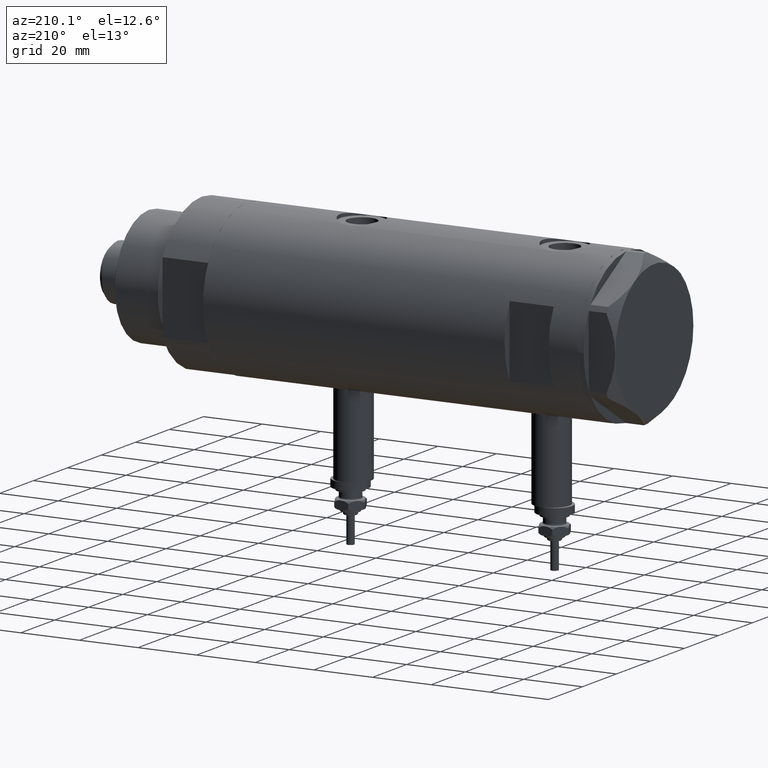
[diagram: clean part render]
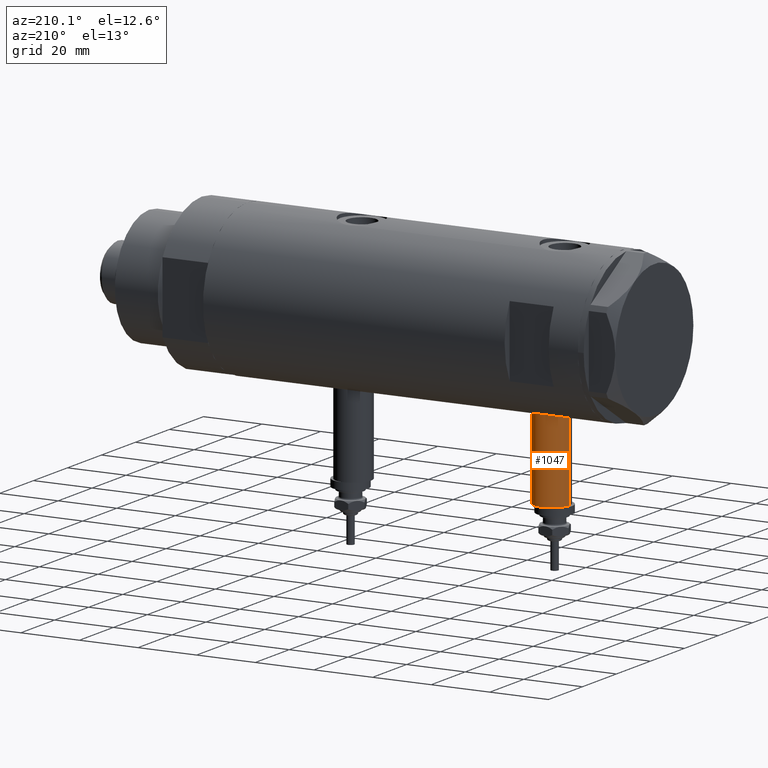
[diagram: same view with one face highlighted and labeled with its STEP entity id]
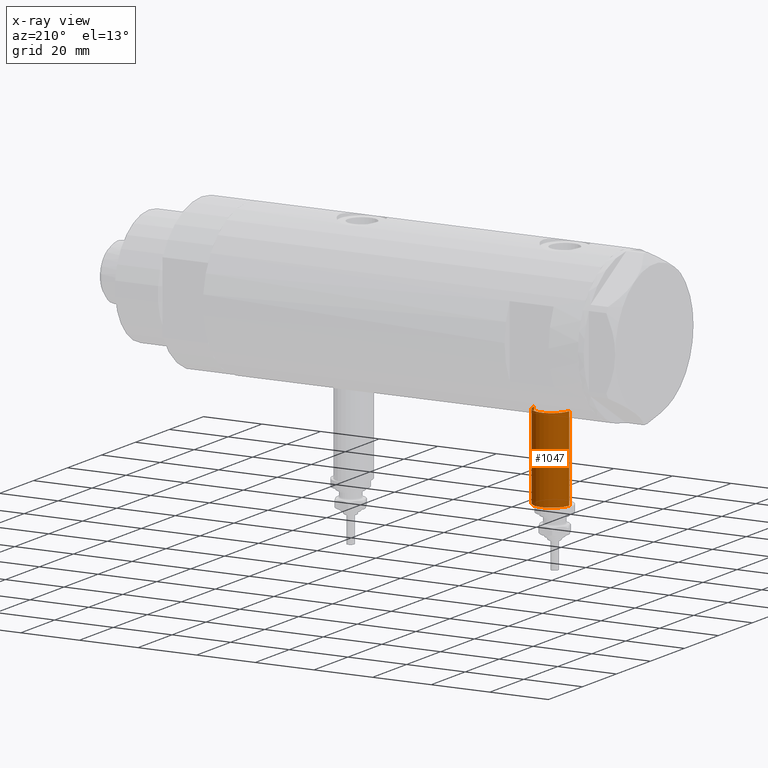
[diagram: x-ray of the same camera — body ghosted, the highlighted face saturated]
A machine part, auxiliary view. The second image highlights one B-rep face of the part: STEP entity #1047.
The next image is the same camera in x-ray: the body ghosted, the highlighted face saturated — about 0% of this face is hidden behind the body in this view.
In plain terms, the highlighted cylindrical surface (edge-blend (fillet) strip) has radius 6 mm, axis along (0, 0, 1).
Its self-contained STEP definition (entity closure, byte-faithful):
#148 = DIRECTION ( 'NONE',  ( -1.000000000000000000, 0.000000000000000000, 0.000000000000000000 ) ) ;
#188 = EDGE_CURVE ( 'NONE', #3764, #1691, #1203, .T. ) ;
#240 = VECTOR ( 'NONE', #1336, 1000.000000000000000 ) ;
#317 = CIRCLE ( 'NONE', #3570, 5.999999999999998224 ) ;
#329 = ORIENTED_EDGE ( 'NONE', *, *, #4423, .T. ) ;
#539 = CARTESIAN_POINT ( 'NONE',  ( -53.40000000000000568, 0.000000000000000000, 39.95000000000000284 ) ) ;
#668 = VERTEX_POINT ( 'NONE', #5798 ) ;
#1047 = ADVANCED_FACE ( 'NONE', ( #3474 ), #2963, .T. ) ;
#1048 = DIRECTION ( 'NONE',  ( 0.000000000000000000, 0.000000000000000000, -1.000000000000000000 ) ) ;
#1203 = LINE ( 'NONE', #5245, #240 ) ;
#1336 = DIRECTION ( 'NONE',  ( 1.000000000000000000, -0.000000000000000000, -0.000000000000000000 ) ) ;
#1486 = EDGE_LOOP ( 'NONE', ( #4390, #329, #1755, #2008 ) ) ;
#1520 = EDGE_CURVE ( 'NONE', #668, #1691, #317, .T. ) ;
#1691 = VERTEX_POINT ( 'NONE', #6098 ) ;
#1703 = CARTESIAN_POINT ( 'NONE',  ( -53.40000000000000568, 0.000000000000000000, 33.95000000000000995 ) ) ;
#1755 = ORIENTED_EDGE ( 'NONE', *, *, #1520, .T. ) ;
#2008 = ORIENTED_EDGE ( 'NONE', *, *, #188, .F. ) ;
#2438 = LINE ( 'NONE', #2945, #6142 ) ;
#2545 = DIRECTION ( 'NONE',  ( 1.000000000000000000, -0.000000000000000000, -0.000000000000000000 ) ) ;
#2808 = EDGE_CURVE ( 'NONE', #5468, #3764, #4498, .T. ) ;
#2945 = CARTESIAN_POINT ( 'NONE',  ( -53.40000000000000568, 7.347880794884112834E-16, 45.95000000000000284 ) ) ;
#2963 = CYLINDRICAL_SURFACE ( 'NONE', #4297, 5.999999999999998224 ) ;
#3474 = FACE_OUTER_BOUND ( 'NONE', #1486, .T. ) ;
#3570 = AXIS2_PLACEMENT_3D ( 'NONE', #4526, #148, #6113 ) ;
#3731 = DIRECTION ( 'NONE',  ( 0.000000000000000000, 0.000000000000000000, 1.000000000000000000 ) ) ;
#3764 = VERTEX_POINT ( 'NONE', #1703 ) ;
#3872 = DIRECTION ( 'NONE',  ( 1.000000000000000000, -0.000000000000000000, -0.000000000000000000 ) ) ;
#4297 = AXIS2_PLACEMENT_3D ( 'NONE', #539, #2545, #1048 ) ;
#4390 = ORIENTED_EDGE ( 'NONE', *, *, #2808, .F. ) ;
#4423 = EDGE_CURVE ( 'NONE', #5468, #668, #2438, .T. ) ;
#4498 = CIRCLE ( 'NONE', #4812, 5.999999999999998224 ) ;
#4526 = CARTESIAN_POINT ( 'NONE',  ( -24.80000000000000426, 0.000000000000000000, 39.95000000000000284 ) ) ;
#4812 = AXIS2_PLACEMENT_3D ( 'NONE', #6165, #5148, #3731 ) ;
#5148 = DIRECTION ( 'NONE',  ( -1.000000000000000000, 0.000000000000000000, 0.000000000000000000 ) ) ;
#5245 = CARTESIAN_POINT ( 'NONE',  ( -53.40000000000000568, 0.000000000000000000, 33.95000000000000995 ) ) ;
#5468 = VERTEX_POINT ( 'NONE', #5676 ) ;
#5676 = CARTESIAN_POINT ( 'NONE',  ( -53.40000000000000568, 7.347880794884108889E-16, 45.95000000000000284 ) ) ;
#5798 = CARTESIAN_POINT ( 'NONE',  ( -24.80000000000000426, 7.347880794884108889E-16, 45.95000000000000284 ) ) ;
#6098 = CARTESIAN_POINT ( 'NONE',  ( -24.80000000000000426, 0.000000000000000000, 33.95000000000000995 ) ) ;
#6113 = DIRECTION ( 'NONE',  ( 0.000000000000000000, 0.000000000000000000, 1.000000000000000000 ) ) ;
#6142 = VECTOR ( 'NONE', #3872, 1000.000000000000000 ) ;
#6165 = CARTESIAN_POINT ( 'NONE',  ( -53.40000000000000568, 0.000000000000000000, 39.95000000000000284 ) ) ;